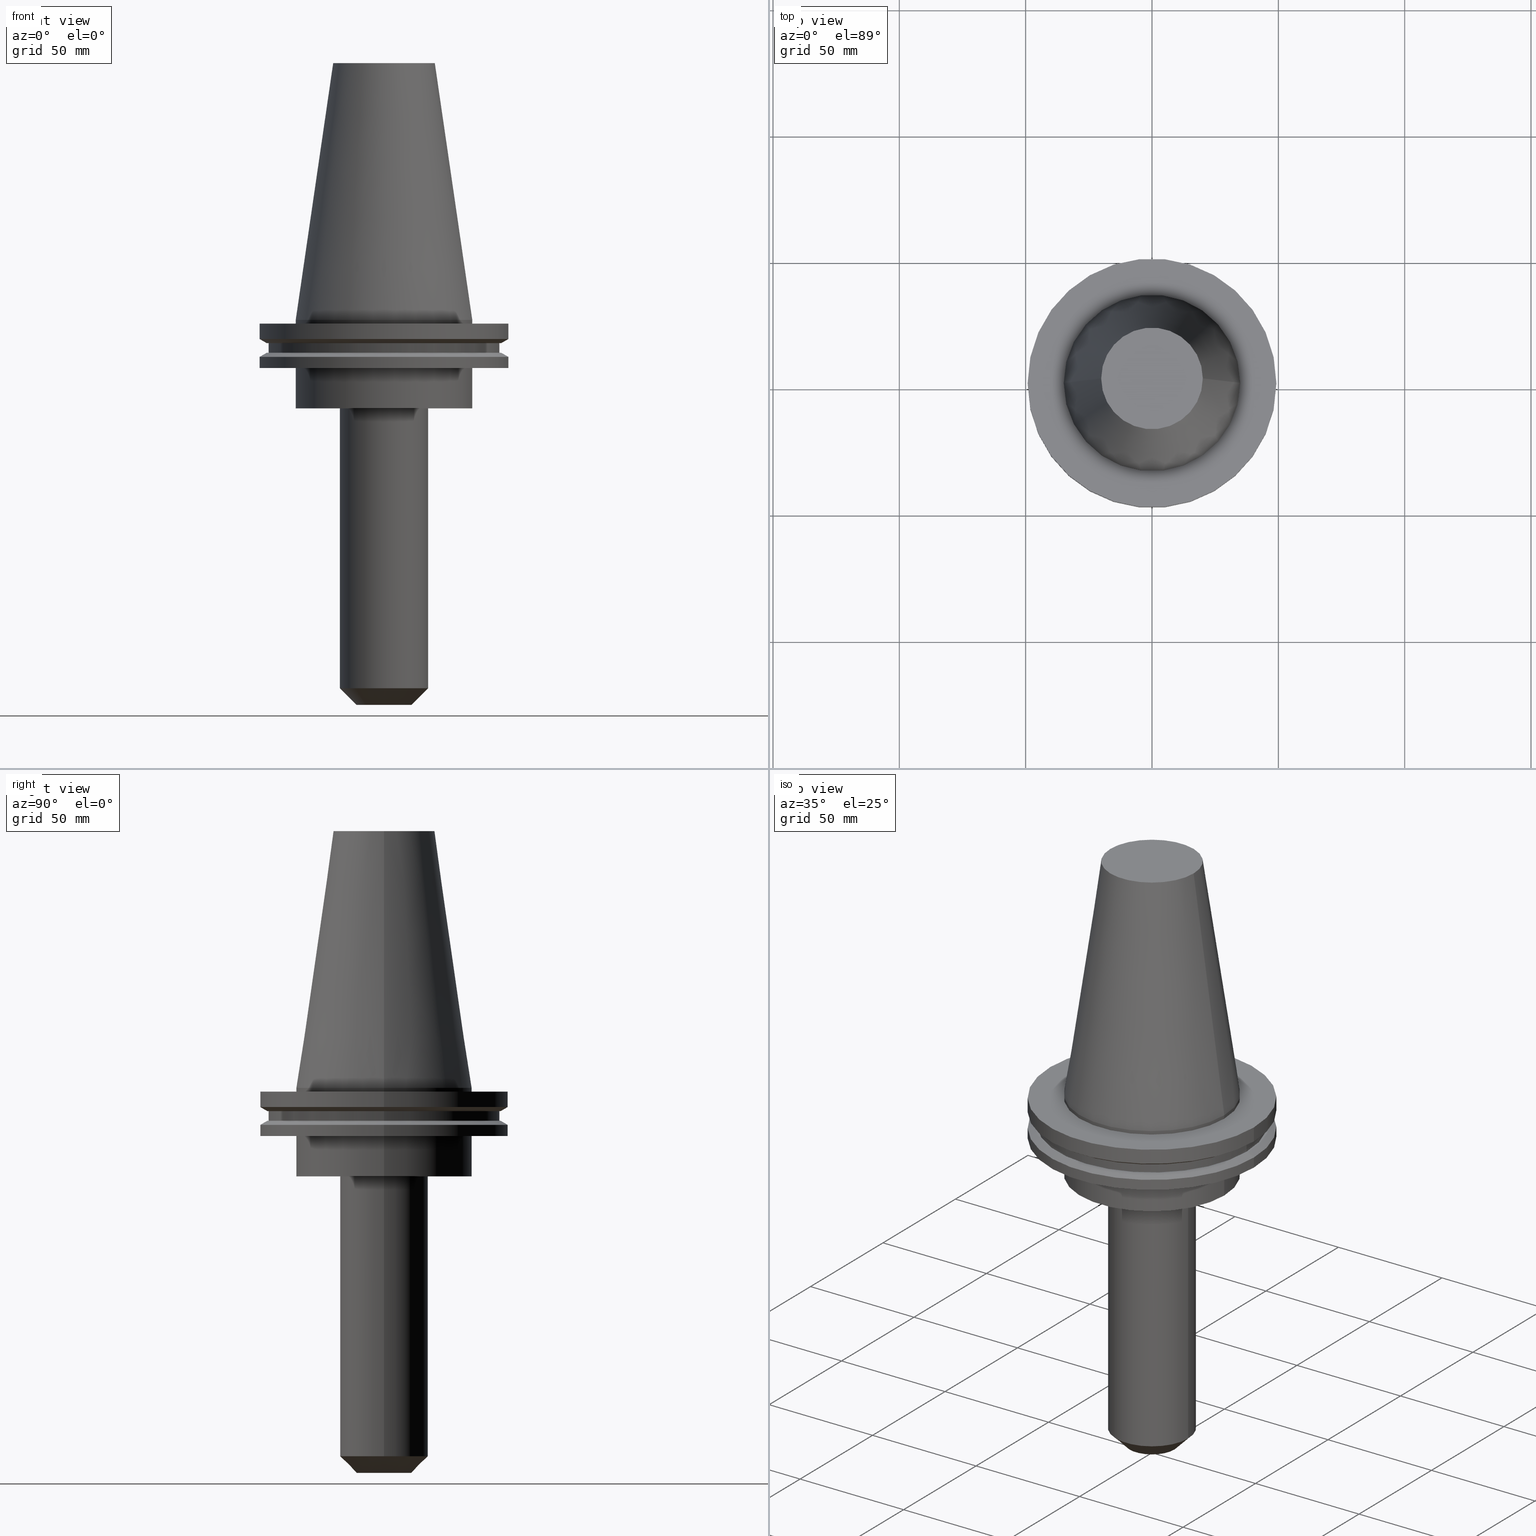
[diagram: canonical four-view strip — front | top / right | iso, engineering-drawing reading convention]
A machine part, canonical four-view strip (front | top / right | iso — engineering-drawing reading convention). The complete STEP part file that produces these views, byte-faithful:
ISO-10303-21;
HEADER;
FILE_DESCRIPTION (( 'STEP AP203' ),
    '1' );
FILE_NAME ('BCV50-EM_500-6.stp',
    '2022-03-03T16:44:04',
    ( '' ),
    ( '' ),
    'SwSTEP 2.0',
    'SolidWorks 2021',
    '' );
FILE_SCHEMA (( 'CONFIG_CONTROL_DESIGN' ));
ENDSEC;

DATA;
#1 = CARTESIAN_POINT ( 'NONE',  ( 0.000000000000000000, 49.21499999999999631, -1.499999999999992895 ) ) ;
#2 = ORIENTED_EDGE ( 'NONE', *, *, #571, .F. ) ;
#3 = DIRECTION ( 'NONE',  ( -0.7071067811865483499, 8.659560562354942719E-17, 0.7071067811865466846 ) ) ;
#4 = ORIENTED_EDGE ( 'NONE', *, *, #256, .F. ) ;
#5 = EDGE_CURVE ( 'NONE', #598, #535, #28, .T. ) ;
#6 = ORIENTED_EDGE ( 'NONE', *, *, #679, .F. ) ;
#7 = CARTESIAN_POINT ( 'NONE',  ( -10.86499999999999488, 1.330578747273598544E-15, -152.4000000000000057 ) ) ;
#8 = AXIS2_PLACEMENT_3D ( 'NONE', #458, #707, #837 ) ;
#9 = DATE_AND_TIME ( #201, #305 ) ;
#10 = AXIS2_PLACEMENT_3D ( 'NONE', #489, #363, #624 ) ;
#11 = VERTEX_POINT ( 'NONE', #688 ) ;
#12 = EDGE_CURVE ( 'NONE', #615, #574, #811, .T. ) ;
#13 = DIRECTION ( 'NONE',  ( -0.000000000000000000, -0.000000000000000000, 1.000000000000000000 ) ) ;
#14 = ORIENTED_EDGE ( 'NONE', *, *, #178, .T. ) ;
#15 = CIRCLE ( 'NONE', #138, 10.86499999999999488 ) ;
#16 = DIRECTION ( 'NONE',  ( 1.000000000000000000, 0.000000000000000000, 0.000000000000000000 ) ) ;
#17 = ORIENTED_EDGE ( 'NONE', *, *, #263, .F. ) ;
#18 = DIRECTION ( 'NONE',  ( -0.000000000000000000, -0.000000000000000000, 1.000000000000000000 ) ) ;
#19 = CARTESIAN_POINT ( 'NONE',  ( -34.92499999999999005, 4.277078946022130098E-15, -1.499999999999987566 ) ) ;
#20 = COORDINATED_UNIVERSAL_TIME_OFFSET ( 6, 0, .BEHIND. ) ;
#21 = EDGE_LOOP ( 'NONE', ( #626, #188, #622, #30 ) ) ;
#22 = CARTESIAN_POINT ( 'NONE',  ( 6.349999999999996092, 0.000000000000000000, -35.04999999999999716 ) ) ;
#23 = VERTEX_POINT ( 'NONE', #19 ) ;
#24 = EDGE_CURVE ( 'NONE', #264, #662, #538, .T. ) ;
#25 = PERSON_AND_ORGANIZATION ( #332, #763 ) ;
#26 = ORIENTED_EDGE ( 'NONE', *, *, #486, .F. ) ;
#27 = DIRECTION ( 'NONE',  ( 1.000000000000000000, 0.000000000000000000, 0.000000000000000000 ) ) ;
#28 = CIRCLE ( 'NONE', #465, 34.92499999999999005 ) ;
#29 = AXIS2_PLACEMENT_3D ( 'NONE', #719, #849, #532 ) ;
#30 = ORIENTED_EDGE ( 'NONE', *, *, #5, .T. ) ;
#31 = CIRCLE ( 'NONE', #512, 6.350000000000004086 ) ;
#32 = EDGE_CURVE ( 'NONE', #384, #280, #806, .T. ) ;
#33 = DATE_AND_TIME ( #36, #848 ) ;
#34 = PLANE ( 'NONE',  #854 ) ;
#35 = ORIENTED_EDGE ( 'NONE', *, *, #505, .F. ) ;
#36 = CALENDAR_DATE ( 2022, 3, 3 ) ;
#37 = DIRECTION ( 'NONE',  ( -1.000000000000000000, 0.000000000000000000, 0.000000000000000000 ) ) ;
#38 = ADVANCED_FACE ( 'NONE', ( #157 ), #424, .T. ) ;
#39 = CARTESIAN_POINT ( 'NONE',  ( -45.64500000000000313, 5.589900314708094957E-15, -9.204999999999991189 ) ) ;
#40 = CC_DESIGN_SECURITY_CLASSIFICATION ( #410, ( #78 ) ) ;
#41 = CARTESIAN_POINT ( 'NONE',  ( -6.349999999999996092, 7.776507174585689205E-16, -35.04999999999999716 ) ) ;
#42 = CC_DESIGN_PERSON_AND_ORGANIZATION_ASSIGNMENT ( #70, #100, ( #78 ) ) ;
#43 = DIRECTION ( 'NONE',  ( 1.000000000000000000, 0.000000000000000000, 0.000000000000000000 ) ) ;
#44 = AXIS2_PLACEMENT_3D ( 'NONE', #390, #647, #55 ) ;
#45 = CARTESIAN_POINT ( 'NONE',  ( -46.43919780457007818, 5.857130358318727293E-15, -9.204999999999991189 ) ) ;
#46 = CARTESIAN_POINT ( 'NONE',  ( 0.000000000000000000, 0.000000000000000000, -35.04999999999999716 ) ) ;
#47 = DIRECTION ( 'NONE',  ( -0.000000000000000000, -0.000000000000000000, 1.000000000000000000 ) ) ;
#48 = DIRECTION ( 'NONE',  ( -0.000000000000000000, -0.000000000000000000, 1.000000000000000000 ) ) ;
#49 = DIRECTION ( 'NONE',  ( 1.000000000000000000, 0.000000000000000000, 0.000000000000000000 ) ) ;
#50 = CARTESIAN_POINT ( 'NONE',  ( -17.46499999999999986, 2.138845634710852534E-15, 0.000000000000000000 ) ) ;
#51 = AXIS2_PLACEMENT_3D ( 'NONE', #573, #628, #301 ) ;
#52 = EDGE_CURVE ( 'NONE', #521, #130, #825, .T. ) ;
#53 = CARTESIAN_POINT ( 'NONE',  ( 0.000000000000000000, 34.92499999999999716, -35.04999999999999716 ) ) ;
#54 = VERTEX_POINT ( 'NONE', #225 ) ;
#55 = DIRECTION ( 'NONE',  ( 1.000000000000000000, 0.000000000000000000, 0.000000000000000000 ) ) ;
#56 = VERTEX_POINT ( 'NONE', #499 ) ;
#57 = DIRECTION ( 'NONE',  ( -1.000000000000000000, 0.000000000000000000, -0.000000000000000000 ) ) ;
#58 = ADVANCED_FACE ( 'NONE', ( #232 ), #762, .T. ) ;
#59 = CARTESIAN_POINT ( 'NONE',  ( 0.000000000000000000, 0.000000000000000000, -35.04999999999999716 ) ) ;
#60 = ORIENTED_EDGE ( 'NONE', *, *, #307, .F. ) ;
#61 = CARTESIAN_POINT ( 'NONE',  ( -45.64500000000000313, 5.589900314708094957E-15, -13.05499999999999794 ) ) ;
#62 = AXIS2_PLACEMENT_3D ( 'NONE', #414, #213, #16 ) ;
#63 = CARTESIAN_POINT ( 'NONE',  ( 0.000000000000000000, 0.000000000000000000, 101.5999999999999943 ) ) ;
#64 = ORIENTED_EDGE ( 'NONE', *, *, #369, .F. ) ;
#65 = DIRECTION ( 'NONE',  ( 1.000000000000000000, 0.000000000000000000, 0.000000000000000000 ) ) ;
#66 = AXIS2_PLACEMENT_3D ( 'NONE', #605, #146, #558 ) ;
#67 = EDGE_LOOP ( 'NONE', ( #116, #270 ) ) ;
#68 = DIRECTION ( 'NONE',  ( 1.000000000000000000, 0.000000000000000000, 0.000000000000000000 ) ) ;
#69 = ORIENTED_EDGE ( 'NONE', *, *, #243, .F. ) ;
#70 = PERSON_AND_ORGANIZATION ( #332, #763 ) ;
#71 = EDGE_LOOP ( 'NONE', ( #548, #557 ) ) ;
#72 = CARTESIAN_POINT ( 'NONE',  ( 34.92499999999999005, 0.000000000000000000, 101.5999999999999943 ) ) ;
#73 = ORIENTED_EDGE ( 'NONE', *, *, #581, .T. ) ;
#74 = EDGE_CURVE ( 'NONE', #280, #475, #433, .T. ) ;
#75 =( NAMED_UNIT ( * ) SI_UNIT ( $, .STERADIAN. ) SOLID_ANGLE_UNIT ( ) );
#76 = ORIENTED_EDGE ( 'NONE', *, *, #549, .F. ) ;
#77 = DIRECTION ( 'NONE',  ( -1.000000000000000000, 0.000000000000000000, 0.000000000000000000 ) ) ;
#78 = PRODUCT_DEFINITION_FORMATION_WITH_SPECIFIED_SOURCE ( 'ANY', '', #330, .NOT_KNOWN. ) ;
#79 = ORIENTED_EDGE ( 'NONE', *, *, #635, .F. ) ;
#80 = ORIENTED_EDGE ( 'NONE', *, *, #313, .F. ) ;
#81 = LINE ( 'NONE', #748, #483 ) ;
#82 = CIRCLE ( 'NONE', #283, 6.349999999999996092 ) ;
#83 = AXIS2_PLACEMENT_3D ( 'NONE', #476, #417, #27 ) ;
#84 = EDGE_LOOP ( 'NONE', ( #477, #643, #404, #79 ) ) ;
#85 = AXIS2_PLACEMENT_3D ( 'NONE', #827, #765, #564 ) ;
#86 = VECTOR ( 'NONE', #834, 1000.000000000000000 ) ;
#87 = DIRECTION ( 'NONE',  ( 1.000000000000000000, 0.000000000000000000, 0.000000000000000000 ) ) ;
#88 = ORIENTED_EDGE ( 'NONE', *, *, #672, .T. ) ;
#89 = CYLINDRICAL_SURFACE ( 'NONE', #83, 6.349999999999996092 ) ;
#90 = EDGE_LOOP ( 'NONE', ( #801, #789, #706, #546 ) ) ;
#91 = CALENDAR_DATE ( 2022, 3, 3 ) ;
#92 = ORIENTED_EDGE ( 'NONE', *, *, #586, .F. ) ;
#93 = DIRECTION ( 'NONE',  ( 0.000000000000000000, 0.000000000000000000, -1.000000000000000000 ) ) ;
#94 = DIRECTION ( 'NONE',  ( 1.000000000000000000, 0.000000000000000000, 0.000000000000000000 ) ) ;
#95 = CIRCLE ( 'NONE', #355, 20.10819343178871321 ) ;
#96 = ADVANCED_FACE ( 'NONE', ( #508 ), #293, .T. ) ;
#97 = DIRECTION ( 'NONE',  ( 1.000000000000000000, 0.000000000000000000, 0.000000000000000000 ) ) ;
#98 = ORIENTED_EDGE ( 'NONE', *, *, #32, .T. ) ;
#99 = CIRCLE ( 'NONE', #828, 6.349999999999996092 ) ;
#100 = PERSON_AND_ORGANIZATION_ROLE ( 'design_supplier' ) ;
#101 = CARTESIAN_POINT ( 'NONE',  ( -34.92499999999999005, 0.000000000000000000, 0.000000000000000000 ) ) ;
#102 = PLANE ( 'NONE',  #51 ) ;
#103 = ADVANCED_FACE ( 'NONE', ( #240, #166 ), #102, .F. ) ;
#104 = CYLINDRICAL_SURFACE ( 'NONE', #839, 45.64500000000000313 ) ;
#105 = CARTESIAN_POINT ( 'NONE',  ( 49.21499999999999631, 0.000000000000000000, 101.5999999999999943 ) ) ;
#106 = DIRECTION ( 'NONE',  ( 0.000000000000000000, 0.000000000000000000, -1.000000000000000000 ) ) ;
#107 = DIRECTION ( 'NONE',  ( 1.000000000000000000, 0.000000000000000000, 0.000000000000000000 ) ) ;
#108 = DIRECTION ( 'NONE',  ( 1.000000000000000000, 0.000000000000000000, 0.000000000000000000 ) ) ;
#109 = CYLINDRICAL_SURFACE ( 'NONE', #646, 45.64500000000000313 ) ;
#110 = CARTESIAN_POINT ( 'NONE',  ( 46.43919780457007818, 0.000000000000000000, -9.204999999999991189 ) ) ;
#111 = ORIENTED_EDGE ( 'NONE', *, *, #382, .F. ) ;
#112 = CARTESIAN_POINT ( 'NONE',  ( 45.64500000000000313, 0.000000000000000000, -13.05499999999999794 ) ) ;
#113 = APPROVAL ( #261, 'UNSPECIFIED' ) ;
#114 = CC_DESIGN_APPROVAL ( #438, ( #78 ) ) ;
#115 = CYLINDRICAL_SURFACE ( 'NONE', #720, 34.92499999999999716 ) ;
#116 = ORIENTED_EDGE ( 'NONE', *, *, #473, .T. ) ;
#117 = CARTESIAN_POINT ( 'NONE',  ( 34.92499999999999005, 0.000000000000000000, -1.499999999999987566 ) ) ;
#118 = AXIS2_PLACEMENT_3D ( 'NONE', #601, #216, #352 ) ;
#119 = CIRCLE ( 'NONE', #603, 34.92499999999999005 ) ;
#120 = EDGE_CURVE ( 'NONE', #783, #206, #690, .T. ) ;
#121 = VECTOR ( 'NONE', #810, 1000.000000000000000 ) ;
#122 = DIRECTION ( 'NONE',  ( -0.000000000000000000, -0.000000000000000000, 1.000000000000000000 ) ) ;
#123 = DIRECTION ( 'NONE',  ( -0.000000000000000000, -0.000000000000000000, 1.000000000000000000 ) ) ;
#124 = ORIENTED_EDGE ( 'NONE', *, *, #434, .T. ) ;
#125 = DIRECTION ( 'NONE',  ( -0.000000000000000000, -0.000000000000000000, 1.000000000000000000 ) ) ;
#126 = PRODUCT_RELATED_PRODUCT_CATEGORY ( 'detail', '', ( #330 ) ) ;
#127 = CARTESIAN_POINT ( 'NONE',  ( 0.000000000000000000, 0.000000000000000000, 0.000000000000000000 ) ) ;
#128 = PLANE ( 'NONE',  #478 ) ;
#129 = CIRCLE ( 'NONE', #161, 34.92499999999999716 ) ;
#130 = VERTEX_POINT ( 'NONE', #236 ) ;
#131 = CARTESIAN_POINT ( 'NONE',  ( 0.000000000000000000, 0.000000000000000000, -152.4000000000000057 ) ) ;
#132 = ORIENTED_EDGE ( 'NONE', *, *, #205, .T. ) ;
#133 = AXIS2_PLACEMENT_3D ( 'NONE', #377, #304, #309 ) ;
#134 = DIRECTION ( 'NONE',  ( -0.000000000000000000, -0.000000000000000000, 1.000000000000000000 ) ) ;
#135 = AXIS2_PLACEMENT_3D ( 'NONE', #379, #642, #437 ) ;
#136 = ORIENTED_EDGE ( 'NONE', *, *, #74, .F. ) ;
#137 = DIRECTION ( 'NONE',  ( 1.000000000000000000, 0.000000000000000000, 0.000000000000000000 ) ) ;
#138 = AXIS2_PLACEMENT_3D ( 'NONE', #362, #553, #623 ) ;
#139 = VERTEX_POINT ( 'NONE', #638 ) ;
#140 = CC_DESIGN_PERSON_AND_ORGANIZATION_ASSIGNMENT ( #608, #661, ( #330 ) ) ;
#141 = CARTESIAN_POINT ( 'NONE',  ( 0.000000000000000000, 0.000000000000000000, -9.204999999999991189 ) ) ;
#142 = ORIENTED_EDGE ( 'NONE', *, *, #24, .T. ) ;
#143 = DIRECTION ( 'NONE',  ( 1.000000000000000000, 0.000000000000000000, 0.000000000000000000 ) ) ;
#144 = CARTESIAN_POINT ( 'NONE',  ( 0.000000000000000000, 0.000000000000000000, -19.04999999999999716 ) ) ;
#145 = EDGE_LOOP ( 'NONE', ( #852, #132, #14, #136 ) ) ;
#146 = DIRECTION ( 'NONE',  ( -0.000000000000000000, -0.000000000000000000, 1.000000000000000000 ) ) ;
#147 = ORIENTED_EDGE ( 'NONE', *, *, #234, .F. ) ;
#148 = MECHANICAL_CONTEXT ( 'NONE', #281, 'mechanical' ) ;
#149 = EDGE_LOOP ( 'NONE', ( #17, #255, #267, #604 ) ) ;
#150 = CARTESIAN_POINT ( 'NONE',  ( 0.000000000000000000, 0.000000000000000000, -14.65761014474876944 ) ) ;
#151 = AXIS2_PLACEMENT_3D ( 'NONE', #795, #18, #204 ) ;
#152 = ORIENTED_EDGE ( 'NONE', *, *, #505, .T. ) ;
#153 = PERSON_AND_ORGANIZATION_ROLE ( 'creator' ) ;
#154 = ORIENTED_EDGE ( 'NONE', *, *, #396, .T. ) ;
#155 = ADVANCED_FACE ( 'NONE', ( #695 ), #441, .T. ) ;
#156 = CARTESIAN_POINT ( 'NONE',  ( 0.000000000000000000, 0.000000000000000000, -9.204999999999991189 ) ) ;
#157 = FACE_OUTER_BOUND ( 'NONE', #149, .T. ) ;
#158 = DATE_AND_TIME ( #365, #670 ) ;
#159 = DIRECTION ( 'NONE',  ( -0.000000000000000000, -0.000000000000000000, 1.000000000000000000 ) ) ;
#160 = VERTEX_POINT ( 'NONE', #172 ) ;
#161 = AXIS2_PLACEMENT_3D ( 'NONE', #711, #323, #65 ) ;
#162 = EDGE_CURVE ( 'NONE', #729, #710, #793, .T. ) ;
#163 = PERSON_AND_ORGANIZATION ( #332, #763 ) ;
#164 = DIRECTION ( 'NONE',  ( 0.000000000000000000, -0.000000000000000000, 1.000000000000000000 ) ) ;
#165 = UNCERTAINTY_MEASURE_WITH_UNIT (LENGTH_MEASURE( 1.000000000000000082E-05 ), #490, 'distance_accuracy_value', 'NONE');
#166 = FACE_OUTER_BOUND ( 'NONE', #731, .T. ) ;
#167 = AXIS2_PLACEMENT_3D ( 'NONE', #230, #634, #770 ) ;
#168 = ADVANCED_FACE ( 'NONE', ( #830 ), #754, .T. ) ;
#169 = FACE_BOUND ( 'NONE', #346, .T. ) ;
#170 = DIRECTION ( 'NONE',  ( -0.000000000000000000, -0.000000000000000000, 1.000000000000000000 ) ) ;
#171 = DIRECTION ( 'NONE',  ( 1.000000000000000000, 0.000000000000000000, 0.000000000000000000 ) ) ;
#172 = CARTESIAN_POINT ( 'NONE',  ( -17.46499999999999986, 2.138845634710852534E-15, -35.04999999999999716 ) ) ;
#173 = DIRECTION ( 'NONE',  ( 1.000000000000000000, 0.000000000000000000, 0.000000000000000000 ) ) ;
#174 = EDGE_CURVE ( 'NONE', #280, #844, #632, .T. ) ;
#175 = CARTESIAN_POINT ( 'NONE',  ( 0.000000000000000000, 0.000000000000000000, 101.5999999999999943 ) ) ;
#176 = CIRCLE ( 'NONE', #202, 17.46499999999999986 ) ;
#177 = CARTESIAN_POINT ( 'NONE',  ( 0.000000000000000000, 0.000000000000000000, 101.5999999999999943 ) ) ;
#178 = EDGE_CURVE ( 'NONE', #160, #475, #176, .T. ) ;
#179 = DIRECTION ( 'NONE',  ( 1.000000000000000000, 0.000000000000000000, 0.000000000000000000 ) ) ;
#180 = ORIENTED_EDGE ( 'NONE', *, *, #679, .T. ) ;
#181 = CARTESIAN_POINT ( 'NONE',  ( 0.000000000000000000, 0.000000000000000000, 101.5999999999999943 ) ) ;
#182 = FACE_BOUND ( 'NONE', #342, .T. ) ;
#183 = EDGE_CURVE ( 'NONE', #675, #673, #31, .T. ) ;
#184 = ORIENTED_EDGE ( 'NONE', *, *, #466, .T. ) ;
#185 = CIRCLE ( 'NONE', #791, 6.350000000000004086 ) ;
#186 = FACE_OUTER_BOUND ( 'NONE', #664, .T. ) ;
#187 = DIRECTION ( 'NONE',  ( -0.000000000000000000, -0.000000000000000000, 1.000000000000000000 ) ) ;
#188 = ORIENTED_EDGE ( 'NONE', *, *, #396, .F. ) ;
#189 = ADVANCED_FACE ( 'NONE', ( #370 ), #109, .T. ) ;
#190 = CARTESIAN_POINT ( 'NONE',  ( 0.000000000000000000, 0.000000000000000000, 0.000000000000000000 ) ) ;
#191 = VECTOR ( 'NONE', #439, 1000.000000000000114 ) ;
#192 = DIRECTION ( 'NONE',  ( 1.000000000000000000, 0.000000000000000000, 0.000000000000000000 ) ) ;
#193 = DIRECTION ( 'NONE',  ( -0.000000000000000000, -0.000000000000000000, 1.000000000000000000 ) ) ;
#194 = CARTESIAN_POINT ( 'NONE',  ( 45.64500000000000313, 0.000000000000000000, 101.5999999999999943 ) ) ;
#195 = VERTEX_POINT ( 'NONE', #39 ) ;
#196 = DIRECTION ( 'NONE',  ( 1.000000000000000000, 0.000000000000000000, 0.000000000000000000 ) ) ;
#197 = CIRCLE ( 'NONE', #440, 45.64500000000000313 ) ;
#198 = VERTEX_POINT ( 'NONE', #446 ) ;
#199 = DIRECTION ( 'NONE',  ( -1.000000000000000000, 0.000000000000000000, 0.000000000000000000 ) ) ;
#200 = ORIENTED_EDGE ( 'NONE', *, *, #263, .T. ) ;
#201 = CALENDAR_DATE ( 2022, 3, 3 ) ;
#202 = AXIS2_PLACEMENT_3D ( 'NONE', #46, #566, #513 ) ;
#203 = ORIENTED_EDGE ( 'NONE', *, *, #612, .F. ) ;
#204 = DIRECTION ( 'NONE',  ( 1.000000000000000000, 0.000000000000000000, 0.000000000000000000 ) ) ;
#205 = EDGE_CURVE ( 'NONE', #844, #160, #705, .T. ) ;
#206 = VERTEX_POINT ( 'NONE', #112 ) ;
#207 = DIRECTION ( 'NONE',  ( 1.000000000000000000, 0.000000000000000000, 0.000000000000000000 ) ) ;
#208 = ORIENTED_EDGE ( 'NONE', *, *, #302, .T. ) ;
#209 = EDGE_LOOP ( 'NONE', ( #325, #518 ) ) ;
#210 = CARTESIAN_POINT ( 'NONE',  ( 10.86499999999999488, 0.000000000000000000, -152.4000000000000057 ) ) ;
#211 = DIRECTION ( 'NONE',  ( -0.8660254037844273833, 1.060575238724893110E-16, 0.5000000000000195399 ) ) ;
#212 = EDGE_CURVE ( 'NONE', #198, #667, #796, .T. ) ;
#213 = DIRECTION ( 'NONE',  ( 0.000000000000000000, 0.000000000000000000, 1.000000000000000000 ) ) ;
#214 = VECTOR ( 'NONE', #289, 1000.000000000000000 ) ;
#215 = EDGE_LOOP ( 'NONE', ( #737, #184, #152, #533 ) ) ;
#216 = DIRECTION ( 'NONE',  ( -0.000000000000000000, -0.000000000000000000, 1.000000000000000000 ) ) ;
#217 = ORIENTED_EDGE ( 'NONE', *, *, #788, .T. ) ;
#218 = APPROVAL_ROLE ( '' ) ;
#219 = ORIENTED_EDGE ( 'NONE', *, *, #224, .F. ) ;
#220 = FACE_OUTER_BOUND ( 'NONE', #771, .T. ) ;
#221 = ORIENTED_EDGE ( 'NONE', *, *, #313, .T. ) ;
#222 = APPROVAL_DATE_TIME ( #33, #276 ) ;
#223 = CARTESIAN_POINT ( 'NONE',  ( 34.92499999999999005, 4.277078946022130098E-15, 0.000000000000000000 ) ) ;
#224 = EDGE_CURVE ( 'NONE', #353, #667, #697, .T. ) ;
#225 = CARTESIAN_POINT ( 'NONE',  ( -10.86499999999999488, 1.734712190992225835E-15, -152.4000000000000057 ) ) ;
#226 = CARTESIAN_POINT ( 'NONE',  ( -34.92499999999999716, 4.277078946022130887E-15, 101.5999999999999943 ) ) ;
#227 = DIRECTION ( 'NONE',  ( -0.000000000000000000, -0.000000000000000000, 1.000000000000000000 ) ) ;
#228 = CIRCLE ( 'NONE', #454, 49.21499999999998920 ) ;
#229 = CARTESIAN_POINT ( 'NONE',  ( 0.000000000000000000, 34.92499999999999716, -35.04999999999999716 ) ) ;
#230 = CARTESIAN_POINT ( 'NONE',  ( 0.000000000000000000, 0.000000000000000000, -145.8000000000000114 ) ) ;
#231 = DIRECTION ( 'NONE',  ( -0.000000000000000000, -0.000000000000000000, 1.000000000000000000 ) ) ;
#232 = FACE_OUTER_BOUND ( 'NONE', #681, .T. ) ;
#233 = AXIS2_PLACEMENT_3D ( 'NONE', #761, #106, #292 ) ;
#234 = EDGE_CURVE ( 'NONE', #56, #195, #387, .T. ) ;
#235 = LINE ( 'NONE', #560, #636 ) ;
#236 = CARTESIAN_POINT ( 'NONE',  ( 49.21499999999998920, 0.000000000000000000, -19.04999999999999716 ) ) ;
#237 = ORIENTED_EDGE ( 'NONE', *, *, #12, .F. ) ;
#238 = CIRCLE ( 'NONE', #151, 49.21499999999998920 ) ;
#239 = FACE_OUTER_BOUND ( 'NONE', #453, .T. ) ;
#240 = FACE_BOUND ( 'NONE', #260, .T. ) ;
#241 = CARTESIAN_POINT ( 'NONE',  ( 0.000000000000000000, 0.000000000000000000, -152.4000000000000057 ) ) ;
#242 = CYLINDRICAL_SURFACE ( 'NONE', #485, 34.92499999999999005 ) ;
#243 = EDGE_CURVE ( 'NONE', #23, #251, #119, .T. ) ;
#244 = ORIENTED_EDGE ( 'NONE', *, *, #162, .F. ) ;
#245 = CONICAL_SURFACE ( 'NONE', #641, 10.86499999999999488, 0.7853981633974495002 ) ;
#246 = FACE_OUTER_BOUND ( 'NONE', #544, .T. ) ;
#247 = CARTESIAN_POINT ( 'NONE',  ( 0.000000000000000000, 0.000000000000000000, -1.499999999999987566 ) ) ;
#248 = ORIENTED_EDGE ( 'NONE', *, *, #434, .F. ) ;
#249 = CIRCLE ( 'NONE', #85, 49.21500000000000341 ) ;
#250 = DIRECTION ( 'NONE',  ( 0.1443082272672999988, 1.767266086135277066E-17, -0.9895327864921755756 ) ) ;
#251 = VERTEX_POINT ( 'NONE', #117 ) ;
#252 = AXIS2_PLACEMENT_3D ( 'NONE', #637, #378, #173 ) ;
#253 = DIRECTION ( 'NONE',  ( -0.000000000000000000, -0.000000000000000000, 1.000000000000000000 ) ) ;
#254 = VECTOR ( 'NONE', #509, 1000.000000000000000 ) ;
#255 = ORIENTED_EDGE ( 'NONE', *, *, #52, .T. ) ;
#256 = EDGE_CURVE ( 'NONE', #251, #535, #464, .T. ) ;
#257 = LINE ( 'NONE', #515, #371 ) ;
#258 = ORIENTED_EDGE ( 'NONE', *, *, #459, .T. ) ;
#259 = CYLINDRICAL_SURFACE ( 'NONE', #29, 17.46499999999999986 ) ;
#260 = EDGE_LOOP ( 'NONE', ( #752, #286 ) ) ;
#261 = APPROVAL_STATUS ( 'not_yet_approved' ) ;
#262 = CC_DESIGN_APPROVAL ( #113, ( #764 ) ) ;
#263 = EDGE_CURVE ( 'NONE', #521, #721, #338, .T. ) ;
#264 = VERTEX_POINT ( 'NONE', #663 ) ;
#265 = CARTESIAN_POINT ( 'NONE',  ( 46.43919780457007818, 5.857130358318725715E-15, -13.05499999999999794 ) ) ;
#266 = AXIS2_PLACEMENT_3D ( 'NONE', #274, #745, #684 ) ;
#267 = ORIENTED_EDGE ( 'NONE', *, *, #612, .T. ) ;
#268 = LINE ( 'NONE', #543, #121 ) ;
#269 = EDGE_CURVE ( 'NONE', #587, #470, #82, .T. ) ;
#270 = ORIENTED_EDGE ( 'NONE', *, *, #162, .T. ) ;
#271 = AXIS2_PLACEMENT_3D ( 'NONE', #633, #231, #501 ) ;
#272 = CARTESIAN_POINT ( 'NONE',  ( -17.46500000000000341, 2.138845634710852928E-15, -145.8000000000000114 ) ) ;
#273 = ORIENTED_EDGE ( 'NONE', *, *, #473, .F. ) ;
#274 = CARTESIAN_POINT ( 'NONE',  ( 0.000000000000000000, 0.000000000000000000, -145.8000000000000114 ) ) ;
#275 = ORIENTED_EDGE ( 'NONE', *, *, #665, .F. ) ;
#276 = APPROVAL ( #360, 'UNSPECIFIED' ) ;
#277 = CIRCLE ( 'NONE', #449, 46.43919780457007818 ) ;
#278 = ORIENTED_EDGE ( 'NONE', *, *, #307, .T. ) ;
#279 = CARTESIAN_POINT ( 'NONE',  ( 17.46499999999999986, 0.000000000000000000, -35.04999999999999716 ) ) ;
#280 = VERTEX_POINT ( 'NONE', #582 ) ;
#281 = APPLICATION_CONTEXT ( 'configuration controlled 3d designs of mechanical parts and assemblies' ) ;
#282 = AXIS2_PLACEMENT_3D ( 'NONE', #510, #373, #296 ) ;
#283 = AXIS2_PLACEMENT_3D ( 'NONE', #59, #123, #137 ) ;
#284 = ORIENTED_EDGE ( 'NONE', *, *, #381, .F. ) ;
#285 = DIRECTION ( 'NONE',  ( 0.8660254037844169472, 1.060575238724880168E-16, -0.5000000000000375255 ) ) ;
#286 = ORIENTED_EDGE ( 'NONE', *, *, #120, .F. ) ;
#287 = ADVANCED_FACE ( 'NONE', ( #448, #182 ), #395, .F. ) ;
#288 = DIRECTION ( 'NONE',  ( 1.000000000000000000, 0.000000000000000000, 0.000000000000000000 ) ) ;
#289 = DIRECTION ( 'NONE',  ( 0.7071067811865483499, 0.000000000000000000, 0.7071067811865466846 ) ) ;
#290 = SECURITY_CLASSIFICATION_LEVEL ( 'unclassified' ) ;
#291 = EDGE_LOOP ( 'NONE', ( #683, #602 ) ) ;
#292 = DIRECTION ( 'NONE',  ( -1.000000000000000000, 0.000000000000000000, -0.000000000000000000 ) ) ;
#293 = CYLINDRICAL_SURFACE ( 'NONE', #740, 49.21499999999999631 ) ;
#294 = APPROVAL_PERSON_ORGANIZATION ( #163, #276, #426 ) ;
#295 = CARTESIAN_POINT ( 'NONE',  ( -20.10819343178871321, 0.000000000000000000, 101.5999999999999801 ) ) ;
#296 = DIRECTION ( 'NONE',  ( 1.000000000000000000, 0.000000000000000000, 0.000000000000000000 ) ) ;
#297 = ADVANCED_FACE ( 'NONE', ( #525 ), #242, .T. ) ;
#298 = AXIS2_PLACEMENT_3D ( 'NONE', #156, #616, #687 ) ;
#299 = AXIS2_PLACEMENT_3D ( 'NONE', #412, #547, #436 ) ;
#300 = PLANE ( 'NONE',  #233 ) ;
#301 = DIRECTION ( 'NONE',  ( -1.000000000000000000, 0.000000000000000000, -0.000000000000000000 ) ) ;
#302 = EDGE_CURVE ( 'NONE', #475, #160, #781, .T. ) ;
#303 = DIRECTION ( 'NONE',  ( -0.000000000000000000, -0.000000000000000000, 1.000000000000000000 ) ) ;
#304 = DIRECTION ( 'NONE',  ( -0.000000000000000000, -0.000000000000000000, 1.000000000000000000 ) ) ;
#305 = LOCAL_TIME ( 10, 44, 4.000000000000000000, #599 ) ;
#306 = ORIENTED_EDGE ( 'NONE', *, *, #492, .T. ) ;
#307 = EDGE_CURVE ( 'NONE', #54, #844, #597, .T. ) ;
#308 = LINE ( 'NONE', #383, #550 ) ;
#309 = DIRECTION ( 'NONE',  ( 1.000000000000000000, 0.000000000000000000, 0.000000000000000000 ) ) ;
#310 = CONICAL_SURFACE ( 'NONE', #468, 34.92499999999999005, 0.1448138465474119452 ) ;
#311 = VECTOR ( 'NONE', #170, 1000.000000000000000 ) ;
#312 = DIRECTION ( 'NONE',  ( 0.000000000000000000, -0.000000000000000000, 1.000000000000000000 ) ) ;
#313 = EDGE_CURVE ( 'NONE', #251, #23, #851, .T. ) ;
#314 = VECTOR ( 'NONE', #753, 1000.000000000000000 ) ;
#315 = ORIENTED_EDGE ( 'NONE', *, *, #665, .T. ) ;
#316 = DIRECTION ( 'NONE',  ( -0.000000000000000000, -0.000000000000000000, 1.000000000000000000 ) ) ;
#317 = ORIENTED_EDGE ( 'NONE', *, *, #506, .F. ) ;
#318 = EDGE_LOOP ( 'NONE', ( #6, #248 ) ) ;
#319 = DESIGN_CONTEXT ( 'detailed design', #686, 'design' ) ;
#320 = DIRECTION ( 'NONE',  ( 1.000000000000000000, 0.000000000000000000, 0.000000000000000000 ) ) ;
#321 = DIRECTION ( 'NONE',  ( 1.000000000000000000, 0.000000000000000000, 0.000000000000000000 ) ) ;
#322 = APPROVAL_PERSON_ORGANIZATION ( #340, #113, #484 ) ;
#323 = DIRECTION ( 'NONE',  ( -0.000000000000000000, -0.000000000000000000, 1.000000000000000000 ) ) ;
#324 = CARTESIAN_POINT ( 'NONE',  ( 49.21500000000000341, 0.000000000000000000, -7.602389855251287187 ) ) ;
#325 = ORIENTED_EDGE ( 'NONE', *, *, #639, .F. ) ;
#326 = ADVANCED_FACE ( 'NONE', ( #520 ), #259, .T. ) ;
#327 = AXIS2_PLACEMENT_3D ( 'NONE', #790, #253, #778 ) ;
#328 = AXIS2_PLACEMENT_3D ( 'NONE', #247, #517, #192 ) ;
#329 = CIRCLE ( 'NONE', #66, 34.92499999999999716 ) ;
#330 = PRODUCT ( 'BCV50-EM_500-6', 'BCV50-EM_500-6', '', ( #148 ) ) ;
#331 = CARTESIAN_POINT ( 'NONE',  ( 34.92499999999999716, 0.000000000000000000, -35.04999999999999716 ) ) ;
#332 = PERSON ( 'UNSPECIFIED', 'UNSPECIFIED', 'UNSPECIFIED', ('UNSPECIFIED'), ('UNSPECIFIED'), ('UNSPECIFIED') ) ;
#333 = EDGE_LOOP ( 'NONE', ( #180, #611, #402, #723 ) ) ;
#334 = DIRECTION ( 'NONE',  ( 0.000000000000000000, 0.000000000000000000, -1.000000000000000000 ) ) ;
#335 = EDGE_CURVE ( 'NONE', #535, #598, #755, .T. ) ;
#336 = CARTESIAN_POINT ( 'NONE',  ( 0.000000000000000000, 0.000000000000000000, -13.05499999999999794 ) ) ;
#337 = ORIENTED_EDGE ( 'NONE', *, *, #335, .T. ) ;
#338 = LINE ( 'NONE', #653, #826 ) ;
#339 = ORIENTED_EDGE ( 'NONE', *, *, #760, .T. ) ;
#340 = PERSON_AND_ORGANIZATION ( #332, #763 ) ;
#341 = AXIS2_PLACEMENT_3D ( 'NONE', #1, #787, #57 ) ;
#342 = EDGE_LOOP ( 'NONE', ( #749, #339 ) ) ;
#343 = DIRECTION ( 'NONE',  ( 1.000000000000000000, 0.000000000000000000, 0.000000000000000000 ) ) ;
#344 = EDGE_LOOP ( 'NONE', ( #648, #735, #337, #2 ) ) ;
#345 = CIRCLE ( 'NONE', #298, 46.43919780457007818 ) ;
#346 = EDGE_LOOP ( 'NONE', ( #463, #817 ) ) ;
#347 = ADVANCED_FACE ( 'NONE', ( #708 ), #310, .T. ) ;
#348 = DIRECTION ( 'NONE',  ( 1.000000000000000000, 0.000000000000000000, 0.000000000000000000 ) ) ;
#349 = DIRECTION ( 'NONE',  ( 1.000000000000000000, 0.000000000000000000, 0.000000000000000000 ) ) ;
#350 = CONICAL_SURFACE ( 'NONE', #829, 49.21499999999998920, 1.047197551196554333 ) ;
#351 = ORIENTED_EDGE ( 'NONE', *, *, #429, .T. ) ;
#352 = DIRECTION ( 'NONE',  ( 1.000000000000000000, 0.000000000000000000, 0.000000000000000000 ) ) ;
#353 = VERTEX_POINT ( 'NONE', #324 ) ;
#354 = DATE_AND_TIME ( #91, #496 ) ;
#355 = AXIS2_PLACEMENT_3D ( 'NONE', #640, #125, #588 ) ;
#356 = EDGE_LOOP ( 'NONE', ( #419, #200, #35, #203 ) ) ;
#357 = CYLINDRICAL_SURFACE ( 'NONE', #741, 6.349999999999996092 ) ;
#358 = DIRECTION ( 'NONE',  ( -0.000000000000000000, -0.000000000000000000, 1.000000000000000000 ) ) ;
#359 = ADVANCED_FACE ( 'NONE', ( #713, #724 ), #785, .F. ) ;
#360 = APPROVAL_STATUS ( 'not_yet_approved' ) ;
#361 = ORIENTED_EDGE ( 'NONE', *, *, #174, .F. ) ;
#362 = CARTESIAN_POINT ( 'NONE',  ( 0.000000000000000000, 0.000000000000000000, -152.4000000000000057 ) ) ;
#363 = DIRECTION ( 'NONE',  ( -0.000000000000000000, -0.000000000000000000, 1.000000000000000000 ) ) ;
#364 = EDGE_CURVE ( 'NONE', #783, #195, #589, .T. ) ;
#365 = CALENDAR_DATE ( 2022, 3, 3 ) ;
#366 = FACE_OUTER_BOUND ( 'NONE', #809, .T. ) ;
#367 = CARTESIAN_POINT ( 'NONE',  ( 0.000000000000000000, 0.000000000000000000, 101.5999999999999943 ) ) ;
#368 = LINE ( 'NONE', #226, #86 ) ;
#369 = EDGE_CURVE ( 'NONE', #206, #56, #529, .T. ) ;
#370 = FACE_OUTER_BOUND ( 'NONE', #90, .T. ) ;
#371 = VECTOR ( 'NONE', #250, 999.9999999999998863 ) ;
#372 = CARTESIAN_POINT ( 'NONE',  ( 49.21499999999998920, 0.000000000000000000, 101.5999999999999943 ) ) ;
#373 = DIRECTION ( 'NONE',  ( -0.000000000000000000, -0.000000000000000000, 1.000000000000000000 ) ) ;
#374 = AXIS2_PLACEMENT_3D ( 'NONE', #734, #668, #97 ) ;
#375 = VECTOR ( 'NONE', #3, 1000.000000000000000 ) ;
#376 = FACE_OUTER_BOUND ( 'NONE', #391, .T. ) ;
#377 = CARTESIAN_POINT ( 'NONE',  ( 0.000000000000000000, 0.000000000000000000, 101.5999999999999943 ) ) ;
#378 = DIRECTION ( 'NONE',  ( -0.000000000000000000, -0.000000000000000000, 1.000000000000000000 ) ) ;
#379 = CARTESIAN_POINT ( 'NONE',  ( 0.000000000000000000, 0.000000000000000000, -1.499999999999987566 ) ) ;
#380 = APPROVAL_PERSON_ORGANIZATION ( #420, #438, #218 ) ;
#381 = EDGE_CURVE ( 'NONE', #54, #384, #431, .T. ) ;
#382 = EDGE_CURVE ( 'NONE', #844, #280, #645, .T. ) ;
#383 = CARTESIAN_POINT ( 'NONE',  ( 34.92499999999999716, 0.000000000000000000, 101.5999999999999943 ) ) ;
#384 = VERTEX_POINT ( 'NONE', #210 ) ;
#385 = DIRECTION ( 'NONE',  ( 0.000000000000000000, 0.000000000000000000, -1.000000000000000000 ) ) ;
#386 = CIRCLE ( 'NONE', #118, 20.10819343178871321 ) ;
#387 = CIRCLE ( 'NONE', #500, 45.64500000000000313 ) ;
#388 = CARTESIAN_POINT ( 'NONE',  ( 0.000000000000000000, 0.000000000000000000, -9.204999999999991189 ) ) ;
#389 = CIRCLE ( 'NONE', #252, 49.21499999999998920 ) ;
#390 = CARTESIAN_POINT ( 'NONE',  ( 0.000000000000000000, 49.21499999999998920, -19.04999999999999716 ) ) ;
#391 = EDGE_LOOP ( 'NONE', ( #154, #217 ) ) ;
#392 = CARTESIAN_POINT ( 'NONE',  ( -49.21499999999999631, 6.027099222003697826E-15, 101.5999999999999943 ) ) ;
#393 = CARTESIAN_POINT ( 'NONE',  ( 0.000000000000000000, 46.43919780457007818, -9.204999999999998295 ) ) ;
#394 = CARTESIAN_POINT ( 'NONE',  ( -49.21499999999998920, 6.027099222003697037E-15, -14.65761014474876944 ) ) ;
#395 = PLANE ( 'NONE',  #725 ) ;
#396 = EDGE_CURVE ( 'NONE', #592, #139, #386, .T. ) ;
#397 = CLOSED_SHELL ( 'NONE', ( #455, #405, #155, #297, #96, #855, #555, #625, #168, #702, #347, #650, #718, #660, #575, #359, #38, #418, #103, #189, #287, #606, #797, #769, #58, #326, #814, #691, #423, #775 ) ) ;
#398 = VECTOR ( 'NONE', #853, 1000.000000000000000 ) ;
#399 = AXIS2_PLACEMENT_3D ( 'NONE', #175, #835, #107 ) ;
#400 = PERSON_AND_ORGANIZATION_ROLE ( 'creator' ) ;
#401 = AXIS2_PLACEMENT_3D ( 'NONE', #177, #47, #288 ) ;
#402 = ORIENTED_EDGE ( 'NONE', *, *, #516, .F. ) ;
#403 = DIRECTION ( 'NONE',  ( 1.000000000000000000, 0.000000000000000000, 0.000000000000000000 ) ) ;
#404 = ORIENTED_EDGE ( 'NONE', *, *, #269, .T. ) ;
#405 = ADVANCED_FACE ( 'NONE', ( #610 ), #727, .T. ) ;
#406 = ORIENTED_EDGE ( 'NONE', *, *, #818, .T. ) ;
#407 = CARTESIAN_POINT ( 'NONE',  ( -46.43919780457007818, 0.000000000000000000, -13.05499999999999794 ) ) ;
#408 = EDGE_LOOP ( 'NONE', ( #237, #124, #733, #76 ) ) ;
#409 = CC_DESIGN_DATE_AND_TIME_ASSIGNMENT ( #158, #620, ( #410 ) ) ;
#410 = SECURITY_CLASSIFICATION ( '', '', #290 ) ;
#411 = ORIENTED_EDGE ( 'NONE', *, *, #506, .T. ) ;
#412 = CARTESIAN_POINT ( 'NONE',  ( 0.000000000000000000, 0.000000000000000000, -7.602389855251287187 ) ) ;
#413 = ORIENTED_EDGE ( 'NONE', *, *, #492, .F. ) ;
#414 = CARTESIAN_POINT ( 'NONE',  ( 0.000000000000000000, 0.000000000000000000, 0.000000000000000000 ) ) ;
#415 = AXIS2_PLACEMENT_3D ( 'NONE', #782, #334, #593 ) ;
#416 = EDGE_LOOP ( 'NONE', ( #306, #278, #361, #655 ) ) ;
#417 = DIRECTION ( 'NONE',  ( -0.000000000000000000, -0.000000000000000000, 1.000000000000000000 ) ) ;
#418 = ADVANCED_FACE ( 'NONE', ( #220 ), #780, .T. ) ;
#419 = ORIENTED_EDGE ( 'NONE', *, *, #639, .T. ) ;
#420 = PERSON_AND_ORGANIZATION ( #332, #763 ) ;
#421 = ORIENTED_EDGE ( 'NONE', *, *, #212, .F. ) ;
#422 = CARTESIAN_POINT ( 'NONE',  ( 46.43919780457007818, 0.000000000000000000, -9.204999999999991189 ) ) ;
#423 = ADVANCED_FACE ( 'NONE', ( #800 ), #357, .F. ) ;
#424 = CYLINDRICAL_SURFACE ( 'NONE', #767, 49.21499999999998920 ) ;
#425 = EDGE_CURVE ( 'NONE', #23, #598, #268, .T. ) ;
#426 = APPROVAL_ROLE ( '' ) ;
#427 = DIRECTION ( 'NONE',  ( -0.000000000000000000, -0.000000000000000000, 1.000000000000000000 ) ) ;
#428 = DIRECTION ( 'NONE',  ( -0.000000000000000000, -0.000000000000000000, 1.000000000000000000 ) ) ;
#429 = EDGE_CURVE ( 'NONE', #721, #11, #228, .T. ) ;
#430 = PERSON_AND_ORGANIZATION ( #332, #763 ) ;
#431 = CIRCLE ( 'NONE', #539, 10.86499999999999488 ) ;
#432 = DIRECTION ( 'NONE',  ( -0.1443082272672999988, 0.000000000000000000, -0.9895327864921755756 ) ) ;
#433 = LINE ( 'NONE', #504, #618 ) ;
#434 = EDGE_CURVE ( 'NONE', #615, #435, #345, .T. ) ;
#435 = VERTEX_POINT ( 'NONE', #422 ) ;
#436 = DIRECTION ( 'NONE',  ( 1.000000000000000000, 0.000000000000000000, 0.000000000000000000 ) ) ;
#437 = DIRECTION ( 'NONE',  ( 1.000000000000000000, 0.000000000000000000, 0.000000000000000000 ) ) ;
#438 = APPROVAL ( #682, 'UNSPECIFIED' ) ;
#439 = DIRECTION ( 'NONE',  ( -0.8660254037844169472, 0.000000000000000000, -0.5000000000000375255 ) ) ;
#440 = AXIS2_PLACEMENT_3D ( 'NONE', #591, #122, #530 ) ;
#441 = CYLINDRICAL_SURFACE ( 'NONE', #577, 17.46499999999999986 ) ;
#442 = DIRECTION ( 'NONE',  ( 1.000000000000000000, 0.000000000000000000, 0.000000000000000000 ) ) ;
#443 = CARTESIAN_POINT ( 'NONE',  ( 0.000000000000000000, 0.000000000000000000, -152.4000000000000057 ) ) ;
#444 = FACE_OUTER_BOUND ( 'NONE', #815, .T. ) ;
#445 = ADVANCED_BREP_SHAPE_REPRESENTATION ( 'BCV50-EM_500-6', ( #812, #62 ), #629 ) ;
#446 = CARTESIAN_POINT ( 'NONE',  ( -49.21499999999999631, 6.027099222003697826E-15, -1.499999999999987566 ) ) ;
#447 = CARTESIAN_POINT ( 'NONE',  ( 6.350000000000004086, 0.000000000000000000, -152.4000000000000057 ) ) ;
#448 = FACE_OUTER_BOUND ( 'NONE', #318, .T. ) ;
#449 = AXIS2_PLACEMENT_3D ( 'NONE', #336, #671, #545 ) ;
#450 = ORIENTED_EDGE ( 'NONE', *, *, #635, .T. ) ;
#451 = FACE_BOUND ( 'NONE', #804, .T. ) ;
#452 = DIRECTION ( 'NONE',  ( -0.000000000000000000, -0.000000000000000000, 1.000000000000000000 ) ) ;
#453 = EDGE_LOOP ( 'NONE', ( #413, #284 ) ) ;
#454 = AXIS2_PLACEMENT_3D ( 'NONE', #816, #159, #207 ) ;
#455 = ADVANCED_FACE ( 'NONE', ( #537 ), #89, .F. ) ;
#456 = CARTESIAN_POINT ( 'NONE',  ( 0.000000000000000000, 0.000000000000000000, -1.499999999999987566 ) ) ;
#457 = CARTESIAN_POINT ( 'NONE',  ( 0.000000000000000000, 0.000000000000000000, -9.204999999999991189 ) ) ;
#458 = CARTESIAN_POINT ( 'NONE',  ( 0.000000000000000000, 6.350000000000004086, -152.4000000000000057 ) ) ;
#459 = EDGE_CURVE ( 'NONE', #206, #783, #676, .T. ) ;
#460 = DIRECTION ( 'NONE',  ( -0.000000000000000000, -0.000000000000000000, 1.000000000000000000 ) ) ;
#461 = AXIS2_PLACEMENT_3D ( 'NONE', #388, #462, #320 ) ;
#462 = DIRECTION ( 'NONE',  ( -0.000000000000000000, -0.000000000000000000, 1.000000000000000000 ) ) ;
#463 = ORIENTED_EDGE ( 'NONE', *, *, #302, .F. ) ;
#464 = LINE ( 'NONE', #72, #742 ) ;
#465 = AXIS2_PLACEMENT_3D ( 'NONE', #554, #428, #349 ) ;
#466 = EDGE_CURVE ( 'NONE', #497, #11, #81, .T. ) ;
#467 = ORIENTED_EDGE ( 'NONE', *, *, #269, .F. ) ;
#468 = AXIS2_PLACEMENT_3D ( 'NONE', #127, #385, #199 ) ;
#469 = APPLICATION_PROTOCOL_DEFINITION ( 'international standard', 'config_control_design', 1994, #686 ) ;
#470 = VERTEX_POINT ( 'NONE', #22 ) ;
#471 = DIRECTION ( 'NONE',  ( -0.000000000000000000, -0.000000000000000000, 1.000000000000000000 ) ) ;
#472 = ORIENTED_EDGE ( 'NONE', *, *, #224, .T. ) ;
#473 = EDGE_CURVE ( 'NONE', #710, #729, #329, .T. ) ;
#474 = DIRECTION ( 'NONE',  ( -0.000000000000000000, -0.000000000000000000, 1.000000000000000000 ) ) ;
#475 = VERTEX_POINT ( 'NONE', #279 ) ;
#476 = CARTESIAN_POINT ( 'NONE',  ( 0.000000000000000000, 0.000000000000000000, 0.000000000000000000 ) ) ;
#477 = ORIENTED_EDGE ( 'NONE', *, *, #802, .F. ) ;
#478 = AXIS2_PLACEMENT_3D ( 'NONE', #53, #312, #196 ) ;
#479 = APPLICATION_PROTOCOL_DEFINITION ( 'international standard', 'config_control_design', 1994, #281 ) ;
#480 = ORIENTED_EDGE ( 'NONE', *, *, #581, .F. ) ;
#481 = CARTESIAN_POINT ( 'NONE',  ( 0.000000000000000000, 0.000000000000000000, -152.4000000000000057 ) ) ;
#482 = EDGE_LOOP ( 'NONE', ( #60, #583, #98, #111 ) ) ;
#483 = VECTOR ( 'NONE', #285, 1000.000000000000114 ) ;
#484 = APPROVAL_ROLE ( '' ) ;
#485 = AXIS2_PLACEMENT_3D ( 'NONE', #63, #657, #68 ) ;
#486 = EDGE_CURVE ( 'NONE', #673, #587, #674, .T. ) ;
#487 = ORIENTED_EDGE ( 'NONE', *, *, #364, .T. ) ;
#488 = CARTESIAN_POINT ( 'NONE',  ( -6.349999999999996092, 7.776507174585689205E-16, 0.000000000000000000 ) ) ;
#489 = CARTESIAN_POINT ( 'NONE',  ( 0.000000000000000000, 0.000000000000000000, -35.04999999999999716 ) ) ;
#490 =( LENGTH_UNIT ( ) NAMED_UNIT ( * ) SI_UNIT ( .MILLI., .METRE. ) );
#491 = ORIENTED_EDGE ( 'NONE', *, *, #335, .F. ) ;
#492 = EDGE_CURVE ( 'NONE', #384, #54, #15, .T. ) ;
#493 = DIRECTION ( 'NONE',  ( -0.000000000000000000, -0.000000000000000000, 1.000000000000000000 ) ) ;
#494 = ORIENTED_EDGE ( 'NONE', *, *, #523, .T. ) ;
#495 = PERSON_AND_ORGANIZATION_ROLE ( 'classification_officer' ) ;
#496 = LOCAL_TIME ( 10, 44, 4.000000000000000000, #747 ) ;
#497 = VERTEX_POINT ( 'NONE', #265 ) ;
#498 = LINE ( 'NONE', #372, #254 ) ;
#499 = CARTESIAN_POINT ( 'NONE',  ( 45.64500000000000313, 0.000000000000000000, -9.204999999999991189 ) ) ;
#500 = AXIS2_PLACEMENT_3D ( 'NONE', #457, #187, #403 ) ;
#501 = DIRECTION ( 'NONE',  ( 1.000000000000000000, 0.000000000000000000, 0.000000000000000000 ) ) ;
#502 = AXIS2_PLACEMENT_3D ( 'NONE', #150, #93, #77 ) ;
#503 = CIRCLE ( 'NONE', #299, 49.21500000000000341 ) ;
#504 = CARTESIAN_POINT ( 'NONE',  ( 17.46499999999999986, 0.000000000000000000, 0.000000000000000000 ) ) ;
#505 = EDGE_CURVE ( 'NONE', #11, #721, #238, .T. ) ;
#506 = EDGE_CURVE ( 'NONE', #514, #497, #798, .T. ) ;
#507 = DIRECTION ( 'NONE',  ( -0.000000000000000000, -0.000000000000000000, 1.000000000000000000 ) ) ;
#508 = FACE_OUTER_BOUND ( 'NONE', #739, .T. ) ;
#509 = DIRECTION ( 'NONE',  ( -0.000000000000000000, -0.000000000000000000, 1.000000000000000000 ) ) ;
#510 = CARTESIAN_POINT ( 'NONE',  ( 0.000000000000000000, 0.000000000000000000, -13.05499999999999794 ) ) ;
#511 = LINE ( 'NONE', #572, #191 ) ;
#512 = AXIS2_PLACEMENT_3D ( 'NONE', #443, #703, #832 ) ;
#513 = DIRECTION ( 'NONE',  ( 1.000000000000000000, 0.000000000000000000, 0.000000000000000000 ) ) ;
#514 = VERTEX_POINT ( 'NONE', #407 ) ;
#515 = CARTESIAN_POINT ( 'NONE',  ( 34.92499999999999005, 4.277078946022130098E-15, 0.000000000000000000 ) ) ;
#516 = EDGE_CURVE ( 'NONE', #353, #574, #503, .T. ) ;
#517 = DIRECTION ( 'NONE',  ( -0.000000000000000000, -0.000000000000000000, 1.000000000000000000 ) ) ;
#518 = ORIENTED_EDGE ( 'NONE', *, *, #52, .F. ) ;
#519 = CARTESIAN_POINT ( 'NONE',  ( 49.21499999999999631, 0.000000000000000000, -1.499999999999987566 ) ) ;
#520 = FACE_OUTER_BOUND ( 'NONE', #559, .T. ) ;
#521 = VERTEX_POINT ( 'NONE', #693 ) ;
#522 = CONICAL_SURFACE ( 'NONE', #777, 46.43919780457007818, 1.047197551196575205 ) ;
#523 = EDGE_CURVE ( 'NONE', #514, #721, #511, .T. ) ;
#524 = CARTESIAN_POINT ( 'NONE',  ( 0.000000000000000000, 0.000000000000000000, 101.5999999999999943 ) ) ;
#525 = FACE_OUTER_BOUND ( 'NONE', #842, .T. ) ;
#526 = VECTOR ( 'NONE', #432, 999.9999999999998863 ) ;
#527 = DIRECTION ( 'NONE',  ( -0.000000000000000000, -0.000000000000000000, 1.000000000000000000 ) ) ;
#528 = ORIENTED_EDGE ( 'NONE', *, *, #586, .T. ) ;
#529 = LINE ( 'NONE', #194, #658 ) ;
#530 = DIRECTION ( 'NONE',  ( 1.000000000000000000, 0.000000000000000000, 0.000000000000000000 ) ) ;
#531 = ORIENTED_EDGE ( 'NONE', *, *, #466, .F. ) ;
#532 = DIRECTION ( 'NONE',  ( 1.000000000000000000, 0.000000000000000000, 0.000000000000000000 ) ) ;
#533 = ORIENTED_EDGE ( 'NONE', *, *, #523, .F. ) ;
#534 = DIRECTION ( 'NONE',  ( 1.000000000000000000, 0.000000000000000000, 0.000000000000000000 ) ) ;
#535 = VERTEX_POINT ( 'NONE', #223 ) ;
#536 = CC_DESIGN_DATE_AND_TIME_ASSIGNMENT ( #743, #556, ( #764 ) ) ;
#537 = FACE_OUTER_BOUND ( 'NONE', #84, .T. ) ;
#538 = CIRCLE ( 'NONE', #10, 34.92499999999999716 ) ;
#539 = AXIS2_PLACEMENT_3D ( 'NONE', #131, #680, #343 ) ;
#540 = AXIS2_PLACEMENT_3D ( 'NONE', #730, #471, #143 ) ;
#541 = APPROVAL_DATE_TIME ( #9, #113 ) ;
#542 = ORIENTED_EDGE ( 'NONE', *, *, #732, .F. ) ;
#543 = CARTESIAN_POINT ( 'NONE',  ( -34.92499999999999005, 4.277078946022130098E-15, 101.5999999999999943 ) ) ;
#544 = EDGE_LOOP ( 'NONE', ( #315, #528, #273, #542 ) ) ;
#545 = DIRECTION ( 'NONE',  ( 1.000000000000000000, 0.000000000000000000, 0.000000000000000000 ) ) ;
#546 = ORIENTED_EDGE ( 'NONE', *, *, #760, .F. ) ;
#547 = DIRECTION ( 'NONE',  ( -0.000000000000000000, -0.000000000000000000, 1.000000000000000000 ) ) ;
#548 = ORIENTED_EDGE ( 'NONE', *, *, #736, .T. ) ;
#549 = EDGE_CURVE ( 'NONE', #574, #353, #249, .T. ) ;
#550 = VECTOR ( 'NONE', #134, 1000.000000000000000 ) ;
#551 = DIRECTION ( 'NONE',  ( 1.000000000000000000, 0.000000000000000000, 0.000000000000000000 ) ) ;
#552 = ORIENTED_EDGE ( 'NONE', *, *, #516, .T. ) ;
#553 = DIRECTION ( 'NONE',  ( -0.000000000000000000, -0.000000000000000000, 1.000000000000000000 ) ) ;
#554 = CARTESIAN_POINT ( 'NONE',  ( 0.000000000000000000, 0.000000000000000000, 0.000000000000000000 ) ) ;
#555 = ADVANCED_FACE ( 'NONE', ( #366 ), #104, .T. ) ;
#556 = DATE_TIME_ROLE ( 'creation_date' ) ;
#557 = ORIENTED_EDGE ( 'NONE', *, *, #212, .T. ) ;
#558 = DIRECTION ( 'NONE',  ( 1.000000000000000000, 0.000000000000000000, 0.000000000000000000 ) ) ;
#559 = EDGE_LOOP ( 'NONE', ( #669, #594, #794, #208 ) ) ;
#560 = CARTESIAN_POINT ( 'NONE',  ( 6.349999999999996092, 0.000000000000000000, 0.000000000000000000 ) ) ;
#561 = DIRECTION ( 'NONE',  ( -0.000000000000000000, -0.000000000000000000, 1.000000000000000000 ) ) ;
#562 = COORDINATED_UNIVERSAL_TIME_OFFSET ( 6, 0, .BEHIND. ) ;
#563 = AXIS2_PLACEMENT_3D ( 'NONE', #456, #193, #644 ) ;
#564 = DIRECTION ( 'NONE',  ( 1.000000000000000000, 0.000000000000000000, 0.000000000000000000 ) ) ;
#565 = CC_DESIGN_PERSON_AND_ORGANIZATION_ASSIGNMENT ( #430, #495, ( #410 ) ) ;
#566 = DIRECTION ( 'NONE',  ( 0.000000000000000000, 0.000000000000000000, -1.000000000000000000 ) ) ;
#567 = FACE_OUTER_BOUND ( 'NONE', #215, .T. ) ;
#568 = CARTESIAN_POINT ( 'NONE',  ( 0.000000000000000000, 0.000000000000000000, 0.000000000000000000 ) ) ;
#569 = CARTESIAN_POINT ( 'NONE',  ( 0.000000000000000000, 0.000000000000000000, 101.5999999999999943 ) ) ;
#570 = CARTESIAN_POINT ( 'NONE',  ( 0.000000000000000000, 0.000000000000000000, -19.04999999999999716 ) ) ;
#571 = EDGE_CURVE ( 'NONE', #592, #598, #831, .T. ) ;
#572 = CARTESIAN_POINT ( 'NONE',  ( -49.21499999999998920, 0.000000000000000000, -14.65761014474876944 ) ) ;
#573 = CARTESIAN_POINT ( 'NONE',  ( 0.000000000000000000, 45.64500000000000313, -13.05499999999999794 ) ) ;
#574 = VERTEX_POINT ( 'NONE', #768 ) ;
#575 = ADVANCED_FACE ( 'NONE', ( #444 ), #630, .T. ) ;
#576 = PLANE ( 'NONE',  #8 ) ;
#577 = AXIS2_PLACEMENT_3D ( 'NONE', #568, #766, #759 ) ;
#578 = CARTESIAN_POINT ( 'NONE',  ( 0.000000000000000000, 0.000000000000000000, 101.5999999999999943 ) ) ;
#579 = CYLINDRICAL_SURFACE ( 'NONE', #833, 49.21499999999999631 ) ;
#580 = EDGE_LOOP ( 'NONE', ( #275, #799 ) ) ;
#581 = EDGE_CURVE ( 'NONE', #470, #587, #99, .T. ) ;
#582 = CARTESIAN_POINT ( 'NONE',  ( 17.46500000000000341, 0.000000000000000000, -145.8000000000000114 ) ) ;
#583 = ORIENTED_EDGE ( 'NONE', *, *, #381, .T. ) ;
#584 = DIRECTION ( 'NONE',  ( -0.000000000000000000, -0.000000000000000000, 1.000000000000000000 ) ) ;
#585 = CARTESIAN_POINT ( 'NONE',  ( -45.64500000000000313, 5.589900314708094957E-15, 101.5999999999999943 ) ) ;
#586 = EDGE_CURVE ( 'NONE', #264, #729, #368, .T. ) ;
#587 = VERTEX_POINT ( 'NONE', #41 ) ;
#588 = DIRECTION ( 'NONE',  ( 1.000000000000000000, 0.000000000000000000, 0.000000000000000000 ) ) ;
#589 = LINE ( 'NONE', #585, #398 ) ;
#590 = ORIENTED_EDGE ( 'NONE', *, *, #732, .T. ) ;
#591 = CARTESIAN_POINT ( 'NONE',  ( 0.000000000000000000, 0.000000000000000000, -9.204999999999991189 ) ) ;
#592 = VERTEX_POINT ( 'NONE', #295 ) ;
#593 = DIRECTION ( 'NONE',  ( 1.000000000000000000, 0.000000000000000000, 0.000000000000000000 ) ) ;
#594 = ORIENTED_EDGE ( 'NONE', *, *, #382, .T. ) ;
#595 = FACE_OUTER_BOUND ( 'NONE', #333, .T. ) ;
#596 = ORIENTED_EDGE ( 'NONE', *, *, #549, .T. ) ;
#597 = LINE ( 'NONE', #7, #375 ) ;
#598 = VERTEX_POINT ( 'NONE', #823 ) ;
#599 = COORDINATED_UNIVERSAL_TIME_OFFSET ( 6, 0, .BEHIND. ) ;
#600 = ORIENTED_EDGE ( 'NONE', *, *, #672, .F. ) ;
#601 = CARTESIAN_POINT ( 'NONE',  ( 0.000000000000000000, 0.000000000000000000, 101.5999999999999801 ) ) ;
#602 = ORIENTED_EDGE ( 'NONE', *, *, #802, .T. ) ;
#603 = AXIS2_PLACEMENT_3D ( 'NONE', #651, #316, #774 ) ;
#604 = ORIENTED_EDGE ( 'NONE', *, *, #429, .F. ) ;
#605 = CARTESIAN_POINT ( 'NONE',  ( 0.000000000000000000, 0.000000000000000000, -19.04999999999999716 ) ) ;
#606 = ADVANCED_FACE ( 'NONE', ( #704 ), #694, .T. ) ;
#607 = CARTESIAN_POINT ( 'NONE',  ( -46.43919780457007818, 5.687161494633754392E-15, -9.204999999999991189 ) ) ;
#608 = PERSON_AND_ORGANIZATION ( #332, #763 ) ;
#609 = ORIENTED_EDGE ( 'NONE', *, *, #183, .F. ) ;
#610 = FACE_OUTER_BOUND ( 'NONE', #416, .T. ) ;
#611 = ORIENTED_EDGE ( 'NONE', *, *, #12, .T. ) ;
#612 = EDGE_CURVE ( 'NONE', #130, #11, #498, .T. ) ;
#613 = CONICAL_SURFACE ( 'NONE', #821, 34.92499999999999005, 0.1448138465474119452 ) ;
#614 = APPROVAL_DATE_TIME ( #354, #438 ) ;
#615 = VERTEX_POINT ( 'NONE', #45 ) ;
#616 = DIRECTION ( 'NONE',  ( -0.000000000000000000, -0.000000000000000000, 1.000000000000000000 ) ) ;
#617 = ORIENTED_EDGE ( 'NONE', *, *, #243, .T. ) ;
#618 = VECTOR ( 'NONE', #840, 1000.000000000000000 ) ;
#619 = EDGE_CURVE ( 'NONE', #435, #353, #627, .T. ) ;
#620 = DATE_TIME_ROLE ( 'classification_date' ) ;
#621 = VECTOR ( 'NONE', #427, 1000.000000000000000 ) ;
#622 = ORIENTED_EDGE ( 'NONE', *, *, #571, .T. ) ;
#623 = DIRECTION ( 'NONE',  ( 1.000000000000000000, 0.000000000000000000, 0.000000000000000000 ) ) ;
#624 = DIRECTION ( 'NONE',  ( 1.000000000000000000, 0.000000000000000000, 0.000000000000000000 ) ) ;
#625 = ADVANCED_FACE ( 'NONE', ( #567 ), #350, .T. ) ;
#626 = ORIENTED_EDGE ( 'NONE', *, *, #726, .F. ) ;
#627 = LINE ( 'NONE', #110, #314 ) ;
#628 = DIRECTION ( 'NONE',  ( 0.000000000000000000, 0.000000000000000000, -1.000000000000000000 ) ) ;
#629 =( GEOMETRIC_REPRESENTATION_CONTEXT ( 3 ) GLOBAL_UNCERTAINTY_ASSIGNED_CONTEXT ( ( #165 ) ) GLOBAL_UNIT_ASSIGNED_CONTEXT ( ( #490, #666, #75 ) ) REPRESENTATION_CONTEXT ( 'NONE', 'WORKASPACE' ) );
#630 = CYLINDRICAL_SURFACE ( 'NONE', #401, 34.92499999999999716 ) ;
#631 = DIRECTION ( 'NONE',  ( -0.000000000000000000, -0.000000000000000000, 1.000000000000000000 ) ) ;
#632 = CIRCLE ( 'NONE', #167, 17.46500000000000341 ) ;
#633 = CARTESIAN_POINT ( 'NONE',  ( 0.000000000000000000, 0.000000000000000000, -9.204999999999991189 ) ) ;
#634 = DIRECTION ( 'NONE',  ( -0.000000000000000000, -0.000000000000000000, 1.000000000000000000 ) ) ;
#635 = EDGE_CURVE ( 'NONE', #675, #470, #235, .T. ) ;
#636 = VECTOR ( 'NONE', #507, 1000.000000000000000 ) ;
#637 = CARTESIAN_POINT ( 'NONE',  ( 0.000000000000000000, 0.000000000000000000, -19.04999999999999716 ) ) ;
#638 = CARTESIAN_POINT ( 'NONE',  ( 20.10819343178871321, 3.369811209154858606E-15, 101.5999999999999801 ) ) ;
#639 = EDGE_CURVE ( 'NONE', #130, #521, #389, .T. ) ;
#640 = CARTESIAN_POINT ( 'NONE',  ( 0.000000000000000000, 0.000000000000000000, 101.5999999999999801 ) ) ;
#641 = AXIS2_PLACEMENT_3D ( 'NONE', #728, #677, #534 ) ;
#642 = DIRECTION ( 'NONE',  ( -0.000000000000000000, -0.000000000000000000, 1.000000000000000000 ) ) ;
#643 = ORIENTED_EDGE ( 'NONE', *, *, #486, .T. ) ;
#644 = DIRECTION ( 'NONE',  ( 1.000000000000000000, 0.000000000000000000, 0.000000000000000000 ) ) ;
#645 = CIRCLE ( 'NONE', #266, 17.46500000000000341 ) ;
#646 = AXIS2_PLACEMENT_3D ( 'NONE', #367, #48, #179 ) ;
#647 = DIRECTION ( 'NONE',  ( 0.000000000000000000, -0.000000000000000000, 1.000000000000000000 ) ) ;
#648 = ORIENTED_EDGE ( 'NONE', *, *, #788, .F. ) ;
#649 = DIRECTION ( 'NONE',  ( -1.000000000000000000, 0.000000000000000000, 0.000000000000000000 ) ) ;
#650 = ADVANCED_FACE ( 'NONE', ( #699, #169 ), #34, .F. ) ;
#651 = CARTESIAN_POINT ( 'NONE',  ( 0.000000000000000000, 0.000000000000000000, -1.499999999999987566 ) ) ;
#652 = FACE_OUTER_BOUND ( 'NONE', #21, .T. ) ;
#653 = CARTESIAN_POINT ( 'NONE',  ( -49.21499999999998920, 6.027099222003697037E-15, 101.5999999999999943 ) ) ;
#654 = VECTOR ( 'NONE', #584, 1000.000000000000000 ) ;
#655 = ORIENTED_EDGE ( 'NONE', *, *, #32, .F. ) ;
#656 = FACE_OUTER_BOUND ( 'NONE', #71, .T. ) ;
#657 = DIRECTION ( 'NONE',  ( -0.000000000000000000, -0.000000000000000000, 1.000000000000000000 ) ) ;
#658 = VECTOR ( 'NONE', #460, 1000.000000000000000 ) ;
#659 = AXIS2_PLACEMENT_3D ( 'NONE', #570, #824, #700 ) ;
#660 = ADVANCED_FACE ( 'NONE', ( #376 ), #300, .F. ) ;
#661 = PERSON_AND_ORGANIZATION_ROLE ( 'design_owner' ) ;
#662 = VERTEX_POINT ( 'NONE', #331 ) ;
#663 = CARTESIAN_POINT ( 'NONE',  ( -34.92499999999999716, 4.277078946022130887E-15, -35.04999999999999716 ) ) ;
#664 = EDGE_LOOP ( 'NONE', ( #600, #596, #472, #421 ) ) ;
#665 = EDGE_CURVE ( 'NONE', #662, #264, #129, .T. ) ;
#666 =( NAMED_UNIT ( * ) PLANE_ANGLE_UNIT ( ) SI_UNIT ( $, .RADIAN. ) );
#667 = VERTEX_POINT ( 'NONE', #519 ) ;
#668 = DIRECTION ( 'NONE',  ( -0.000000000000000000, -0.000000000000000000, 1.000000000000000000 ) ) ;
#669 = ORIENTED_EDGE ( 'NONE', *, *, #205, .F. ) ;
#670 = LOCAL_TIME ( 10, 44, 4.000000000000000000, #751 ) ;
#671 = DIRECTION ( 'NONE',  ( -0.000000000000000000, -0.000000000000000000, 1.000000000000000000 ) ) ;
#672 = EDGE_CURVE ( 'NONE', #574, #198, #846, .T. ) ;
#673 = VERTEX_POINT ( 'NONE', #772 ) ;
#674 = LINE ( 'NONE', #488, #621 ) ;
#675 = VERTEX_POINT ( 'NONE', #447 ) ;
#676 = CIRCLE ( 'NONE', #374, 45.64500000000000313 ) ;
#677 = DIRECTION ( 'NONE',  ( -0.000000000000000000, -0.000000000000000000, 1.000000000000000000 ) ) ;
#678 = EDGE_LOOP ( 'NONE', ( #26, #609, #450, #73 ) ) ;
#679 = EDGE_CURVE ( 'NONE', #435, #615, #698, .T. ) ;
#680 = DIRECTION ( 'NONE',  ( -0.000000000000000000, -0.000000000000000000, 1.000000000000000000 ) ) ;
#681 = EDGE_LOOP ( 'NONE', ( #773, #617, #692, #786 ) ) ;
#682 = APPROVAL_STATUS ( 'not_yet_approved' ) ;
#683 = ORIENTED_EDGE ( 'NONE', *, *, #183, .T. ) ;
#684 = DIRECTION ( 'NONE',  ( 1.000000000000000000, 0.000000000000000000, 0.000000000000000000 ) ) ;
#685 = CARTESIAN_POINT ( 'NONE',  ( 0.000000000000000000, 0.000000000000000000, 101.5999999999999943 ) ) ;
#686 = APPLICATION_CONTEXT ( 'configuration controlled 3d designs of mechanical parts and assemblies' ) ;
#687 = DIRECTION ( 'NONE',  ( 1.000000000000000000, 0.000000000000000000, 0.000000000000000000 ) ) ;
#688 = CARTESIAN_POINT ( 'NONE',  ( 49.21499999999998920, 0.000000000000000000, -14.65761014474876944 ) ) ;
#689 = VECTOR ( 'NONE', #211, 1000.000000000000000 ) ;
#690 = CIRCLE ( 'NONE', #282, 45.64500000000000313 ) ;
#691 = ADVANCED_FACE ( 'NONE', ( #239, #776 ), #576, .F. ) ;
#692 = ORIENTED_EDGE ( 'NONE', *, *, #256, .T. ) ;
#693 = CARTESIAN_POINT ( 'NONE',  ( -49.21499999999998920, 6.027099222003697037E-15, -19.04999999999999716 ) ) ;
#694 = CONICAL_SURFACE ( 'NONE', #271, 46.43919780457007818, 1.047197551196575205 ) ;
#695 = FACE_OUTER_BOUND ( 'NONE', #145, .T. ) ;
#696 = CARTESIAN_POINT ( 'NONE',  ( 0.000000000000000000, 0.000000000000000000, -35.04999999999999716 ) ) ;
#697 = LINE ( 'NONE', #105, #756 ) ;
#698 = CIRCLE ( 'NONE', #461, 46.43919780457007818 ) ;
#699 = FACE_OUTER_BOUND ( 'NONE', #580, .T. ) ;
#700 = DIRECTION ( 'NONE',  ( 1.000000000000000000, 0.000000000000000000, 0.000000000000000000 ) ) ;
#701 = CARTESIAN_POINT ( 'NONE',  ( 0.000000000000000000, 0.000000000000000000, -14.65761014474876944 ) ) ;
#702 = ADVANCED_FACE ( 'NONE', ( #246 ), #115, .T. ) ;
#703 = DIRECTION ( 'NONE',  ( -0.000000000000000000, -0.000000000000000000, 1.000000000000000000 ) ) ;
#704 = FACE_OUTER_BOUND ( 'NONE', #408, .T. ) ;
#705 = LINE ( 'NONE', #50, #311 ) ;
#706 = ORIENTED_EDGE ( 'NONE', *, *, #369, .T. ) ;
#707 = DIRECTION ( 'NONE',  ( 0.000000000000000000, -0.000000000000000000, 1.000000000000000000 ) ) ;
#708 = FACE_OUTER_BOUND ( 'NONE', #344, .T. ) ;
#709 = CC_DESIGN_PERSON_AND_ORGANIZATION_ASSIGNMENT ( #25, #153, ( #764 ) ) ;
#710 = VERTEX_POINT ( 'NONE', #850 ) ;
#711 = CARTESIAN_POINT ( 'NONE',  ( 0.000000000000000000, 0.000000000000000000, -35.04999999999999716 ) ) ;
#712 = AXIS2_PLACEMENT_3D ( 'NONE', #144, #561, #820 ) ;
#713 = FACE_OUTER_BOUND ( 'NONE', #209, .T. ) ;
#714 = PLANE ( 'NONE',  #341 ) ;
#715 = DIRECTION ( 'NONE',  ( -0.000000000000000000, -0.000000000000000000, 1.000000000000000000 ) ) ;
#716 = ORIENTED_EDGE ( 'NONE', *, *, #736, .F. ) ;
#717 = FACE_OUTER_BOUND ( 'NONE', #836, .T. ) ;
#718 = ADVANCED_FACE ( 'NONE', ( #652 ), #613, .T. ) ;
#719 = CARTESIAN_POINT ( 'NONE',  ( 0.000000000000000000, 0.000000000000000000, 0.000000000000000000 ) ) ;
#720 = AXIS2_PLACEMENT_3D ( 'NONE', #524, #527, #779 ) ;
#721 = VERTEX_POINT ( 'NONE', #394 ) ;
#722 = CARTESIAN_POINT ( 'NONE',  ( -34.92499999999999716, 4.277078946022130887E-15, -19.04999999999999716 ) ) ;
#723 = ORIENTED_EDGE ( 'NONE', *, *, #619, .F. ) ;
#724 = FACE_BOUND ( 'NONE', #67, .T. ) ;
#725 = AXIS2_PLACEMENT_3D ( 'NONE', #393, #843, #321 ) ;
#726 = EDGE_CURVE ( 'NONE', #139, #535, #257, .T. ) ;
#727 = CONICAL_SURFACE ( 'NONE', #757, 10.86499999999999488, 0.7853981633974495002 ) ;
#728 = CARTESIAN_POINT ( 'NONE',  ( 0.000000000000000000, 0.000000000000000000, -152.4000000000000057 ) ) ;
#729 = VERTEX_POINT ( 'NONE', #722 ) ;
#730 = CARTESIAN_POINT ( 'NONE',  ( 0.000000000000000000, 0.000000000000000000, -13.05499999999999794 ) ) ;
#731 = EDGE_LOOP ( 'NONE', ( #411, #406 ) ) ;
#732 = EDGE_CURVE ( 'NONE', #662, #710, #308, .T. ) ;
#733 = ORIENTED_EDGE ( 'NONE', *, *, #619, .T. ) ;
#734 = CARTESIAN_POINT ( 'NONE',  ( 0.000000000000000000, 0.000000000000000000, -13.05499999999999794 ) ) ;
#735 = ORIENTED_EDGE ( 'NONE', *, *, #726, .T. ) ;
#736 = EDGE_CURVE ( 'NONE', #667, #198, #847, .T. ) ;
#737 = ORIENTED_EDGE ( 'NONE', *, *, #818, .F. ) ;
#738 = DIRECTION ( 'NONE',  ( 1.000000000000000000, 0.000000000000000000, 0.000000000000000000 ) ) ;
#739 = EDGE_LOOP ( 'NONE', ( #552, #88, #716, #219 ) ) ;
#740 = AXIS2_PLACEMENT_3D ( 'NONE', #578, #227, #43 ) ;
#741 = AXIS2_PLACEMENT_3D ( 'NONE', #805, #493, #348 ) ;
#742 = VECTOR ( 'NONE', #452, 1000.000000000000000 ) ;
#743 = DATE_AND_TIME ( #808, #750 ) ;
#744 = ORIENTED_EDGE ( 'NONE', *, *, #425, .T. ) ;
#745 = DIRECTION ( 'NONE',  ( -0.000000000000000000, -0.000000000000000000, 1.000000000000000000 ) ) ;
#746 = CARTESIAN_POINT ( 'NONE',  ( 10.86499999999999488, 0.000000000000000000, -152.4000000000000057 ) ) ;
#747 = COORDINATED_UNIVERSAL_TIME_OFFSET ( 6, 0, .BEHIND. ) ;
#748 = CARTESIAN_POINT ( 'NONE',  ( 49.21499999999998920, 6.027099222003697037E-15, -14.65761014474876944 ) ) ;
#749 = ORIENTED_EDGE ( 'NONE', *, *, #234, .T. ) ;
#750 = LOCAL_TIME ( 10, 44, 4.000000000000000000, #20 ) ;
#751 = COORDINATED_UNIVERSAL_TIME_OFFSET ( 6, 0, .BEHIND. ) ;
#752 = ORIENTED_EDGE ( 'NONE', *, *, #459, .F. ) ;
#753 = DIRECTION ( 'NONE',  ( 0.8660254037844273833, 0.000000000000000000, 0.5000000000000195399 ) ) ;
#754 = CYLINDRICAL_SURFACE ( 'NONE', #399, 49.21499999999998920 ) ;
#755 = CIRCLE ( 'NONE', #327, 34.92499999999999005 ) ;
#756 = VECTOR ( 'NONE', #631, 1000.000000000000000 ) ;
#757 = AXIS2_PLACEMENT_3D ( 'NONE', #481, #13, #738 ) ;
#758 = DIRECTION ( 'NONE',  ( 0.000000000000000000, 0.000000000000000000, -1.000000000000000000 ) ) ;
#759 = DIRECTION ( 'NONE',  ( 1.000000000000000000, 0.000000000000000000, 0.000000000000000000 ) ) ;
#760 = EDGE_CURVE ( 'NONE', #195, #56, #197, .T. ) ;
#761 = CARTESIAN_POINT ( 'NONE',  ( 0.000000000000000000, 20.10819343178871321, 101.5999999999999943 ) ) ;
#762 = CYLINDRICAL_SURFACE ( 'NONE', #133, 34.92499999999999005 ) ;
#763 = ORGANIZATION ( 'UNSPECIFIED', 'UNSPECIFIED', '' ) ;
#764 = PRODUCT_DEFINITION ( 'UNKNOWN', '', #78, #319 ) ;
#765 = DIRECTION ( 'NONE',  ( -0.000000000000000000, -0.000000000000000000, 1.000000000000000000 ) ) ;
#766 = DIRECTION ( 'NONE',  ( -0.000000000000000000, -0.000000000000000000, 1.000000000000000000 ) ) ;
#767 = AXIS2_PLACEMENT_3D ( 'NONE', #685, #358, #94 ) ;
#768 = CARTESIAN_POINT ( 'NONE',  ( -49.21500000000000341, 6.027099222003699404E-15, -7.602389855251287187 ) ) ;
#769 = ADVANCED_FACE ( 'NONE', ( #451, #656 ), #714, .F. ) ;
#770 = DIRECTION ( 'NONE',  ( 1.000000000000000000, 0.000000000000000000, 0.000000000000000000 ) ) ;
#771 = EDGE_LOOP ( 'NONE', ( #531, #317, #494, #351 ) ) ;
#772 = CARTESIAN_POINT ( 'NONE',  ( -6.350000000000004974, 7.776507174585699066E-16, -152.4000000000000057 ) ) ;
#773 = ORIENTED_EDGE ( 'NONE', *, *, #425, .F. ) ;
#774 = DIRECTION ( 'NONE',  ( 1.000000000000000000, 0.000000000000000000, 0.000000000000000000 ) ) ;
#775 = ADVANCED_FACE ( 'NONE', ( #717 ), #128, .F. ) ;
#776 = FACE_BOUND ( 'NONE', #291, .T. ) ;
#777 = AXIS2_PLACEMENT_3D ( 'NONE', #141, #803, #551 ) ;
#778 = DIRECTION ( 'NONE',  ( 1.000000000000000000, 0.000000000000000000, 0.000000000000000000 ) ) ;
#779 = DIRECTION ( 'NONE',  ( 1.000000000000000000, 0.000000000000000000, 0.000000000000000000 ) ) ;
#780 = CONICAL_SURFACE ( 'NONE', #502, 49.21499999999998920, 1.047197551196554333 ) ;
#781 = CIRCLE ( 'NONE', #415, 17.46499999999999986 ) ;
#782 = CARTESIAN_POINT ( 'NONE',  ( 0.000000000000000000, 0.000000000000000000, -35.04999999999999716 ) ) ;
#783 = VERTEX_POINT ( 'NONE', #61 ) ;
#784 = DIRECTION ( 'NONE',  ( 0.000000000000000000, 0.000000000000000000, -1.000000000000000000 ) ) ;
#785 = PLANE ( 'NONE',  #44 ) ;
#786 = ORIENTED_EDGE ( 'NONE', *, *, #5, .F. ) ;
#787 = DIRECTION ( 'NONE',  ( 0.000000000000000000, 0.000000000000000000, -1.000000000000000000 ) ) ;
#788 = EDGE_CURVE ( 'NONE', #139, #592, #95, .T. ) ;
#789 = ORIENTED_EDGE ( 'NONE', *, *, #120, .T. ) ;
#790 = CARTESIAN_POINT ( 'NONE',  ( 0.000000000000000000, 0.000000000000000000, 0.000000000000000000 ) ) ;
#791 = AXIS2_PLACEMENT_3D ( 'NONE', #241, #474, #87 ) ;
#792 = FACE_OUTER_BOUND ( 'NONE', #482, .T. ) ;
#793 = CIRCLE ( 'NONE', #659, 34.92499999999999716 ) ;
#794 = ORIENTED_EDGE ( 'NONE', *, *, #74, .T. ) ;
#795 = CARTESIAN_POINT ( 'NONE',  ( 0.000000000000000000, 0.000000000000000000, -14.65761014474876944 ) ) ;
#796 = CIRCLE ( 'NONE', #135, 49.21499999999999631 ) ;
#797 = ADVANCED_FACE ( 'NONE', ( #186 ), #579, .T. ) ;
#798 = CIRCLE ( 'NONE', #540, 46.43919780457007818 ) ;
#799 = ORIENTED_EDGE ( 'NONE', *, *, #24, .F. ) ;
#800 = FACE_OUTER_BOUND ( 'NONE', #678, .T. ) ;
#801 = ORIENTED_EDGE ( 'NONE', *, *, #364, .F. ) ;
#802 = EDGE_CURVE ( 'NONE', #673, #675, #185, .T. ) ;
#803 = DIRECTION ( 'NONE',  ( -0.000000000000000000, -0.000000000000000000, 1.000000000000000000 ) ) ;
#804 = EDGE_LOOP ( 'NONE', ( #80, #69 ) ) ;
#805 = CARTESIAN_POINT ( 'NONE',  ( 0.000000000000000000, 0.000000000000000000, 0.000000000000000000 ) ) ;
#806 = LINE ( 'NONE', #746, #214 ) ;
#807 = CC_DESIGN_APPROVAL ( #276, ( #410 ) ) ;
#808 = CALENDAR_DATE ( 2022, 3, 3 ) ;
#809 = EDGE_LOOP ( 'NONE', ( #258, #487, #147, #64 ) ) ;
#810 = DIRECTION ( 'NONE',  ( -0.000000000000000000, -0.000000000000000000, 1.000000000000000000 ) ) ;
#811 = LINE ( 'NONE', #607, #689 ) ;
#812 = MANIFOLD_SOLID_BREP ( 'EM', #397 ) ;
#813 = PERSON_AND_ORGANIZATION ( #332, #763 ) ;
#814 = ADVANCED_FACE ( 'NONE', ( #792 ), #245, .T. ) ;
#815 = EDGE_LOOP ( 'NONE', ( #92, #142, #590, #244 ) ) ;
#816 = CARTESIAN_POINT ( 'NONE',  ( 0.000000000000000000, 0.000000000000000000, -14.65761014474876944 ) ) ;
#817 = ORIENTED_EDGE ( 'NONE', *, *, #178, .F. ) ;
#818 = EDGE_CURVE ( 'NONE', #497, #514, #277, .T. ) ;
#819 = DIRECTION ( 'NONE',  ( -0.000000000000000000, -0.000000000000000000, 1.000000000000000000 ) ) ;
#820 = DIRECTION ( 'NONE',  ( 1.000000000000000000, 0.000000000000000000, 0.000000000000000000 ) ) ;
#821 = AXIS2_PLACEMENT_3D ( 'NONE', #190, #784, #649 ) ;
#822 = SHAPE_DEFINITION_REPRESENTATION ( #845, #445 ) ;
#823 = CARTESIAN_POINT ( 'NONE',  ( -34.92499999999999005, 0.000000000000000000, 0.000000000000000000 ) ) ;
#824 = DIRECTION ( 'NONE',  ( -0.000000000000000000, -0.000000000000000000, 1.000000000000000000 ) ) ;
#825 = CIRCLE ( 'NONE', #712, 49.21499999999998920 ) ;
#826 = VECTOR ( 'NONE', #715, 1000.000000000000000 ) ;
#827 = CARTESIAN_POINT ( 'NONE',  ( 0.000000000000000000, 0.000000000000000000, -7.602389855251287187 ) ) ;
#828 = AXIS2_PLACEMENT_3D ( 'NONE', #696, #819, #442 ) ;
#829 = AXIS2_PLACEMENT_3D ( 'NONE', #701, #758, #37 ) ;
#830 = FACE_OUTER_BOUND ( 'NONE', #356, .T. ) ;
#831 = LINE ( 'NONE', #101, #526 ) ;
#832 = DIRECTION ( 'NONE',  ( 1.000000000000000000, 0.000000000000000000, 0.000000000000000000 ) ) ;
#833 = AXIS2_PLACEMENT_3D ( 'NONE', #181, #841, #49 ) ;
#834 = DIRECTION ( 'NONE',  ( -0.000000000000000000, -0.000000000000000000, 1.000000000000000000 ) ) ;
#835 = DIRECTION ( 'NONE',  ( -0.000000000000000000, -0.000000000000000000, 1.000000000000000000 ) ) ;
#836 = EDGE_LOOP ( 'NONE', ( #480, #467 ) ) ;
#837 = DIRECTION ( 'NONE',  ( 1.000000000000000000, 0.000000000000000000, 0.000000000000000000 ) ) ;
#838 = CC_DESIGN_PERSON_AND_ORGANIZATION_ASSIGNMENT ( #813, #400, ( #78 ) ) ;
#839 = AXIS2_PLACEMENT_3D ( 'NONE', #569, #303, #171 ) ;
#840 = DIRECTION ( 'NONE',  ( -0.000000000000000000, -0.000000000000000000, 1.000000000000000000 ) ) ;
#841 = DIRECTION ( 'NONE',  ( -0.000000000000000000, -0.000000000000000000, 1.000000000000000000 ) ) ;
#842 = EDGE_LOOP ( 'NONE', ( #221, #744, #491, #4 ) ) ;
#843 = DIRECTION ( 'NONE',  ( 0.000000000000000000, -0.000000000000000000, 1.000000000000000000 ) ) ;
#844 = VERTEX_POINT ( 'NONE', #272 ) ;
#845 = PRODUCT_DEFINITION_SHAPE ( 'NONE', 'NONE',  #764 ) ;
#846 = LINE ( 'NONE', #392, #654 ) ;
#847 = CIRCLE ( 'NONE', #563, 49.21499999999999631 ) ;
#848 = LOCAL_TIME ( 10, 44, 4.000000000000000000, #562 ) ;
#849 = DIRECTION ( 'NONE',  ( -0.000000000000000000, -0.000000000000000000, 1.000000000000000000 ) ) ;
#850 = CARTESIAN_POINT ( 'NONE',  ( 34.92499999999999716, 0.000000000000000000, -19.04999999999999716 ) ) ;
#851 = CIRCLE ( 'NONE', #328, 34.92499999999999005 ) ;
#852 = ORIENTED_EDGE ( 'NONE', *, *, #174, .T. ) ;
#853 = DIRECTION ( 'NONE',  ( -0.000000000000000000, -0.000000000000000000, 1.000000000000000000 ) ) ;
#854 = AXIS2_PLACEMENT_3D ( 'NONE', #229, #164, #108 ) ;
#855 = ADVANCED_FACE ( 'NONE', ( #595 ), #522, .T. ) ;
ENDSEC;
END-ISO-10303-21;
